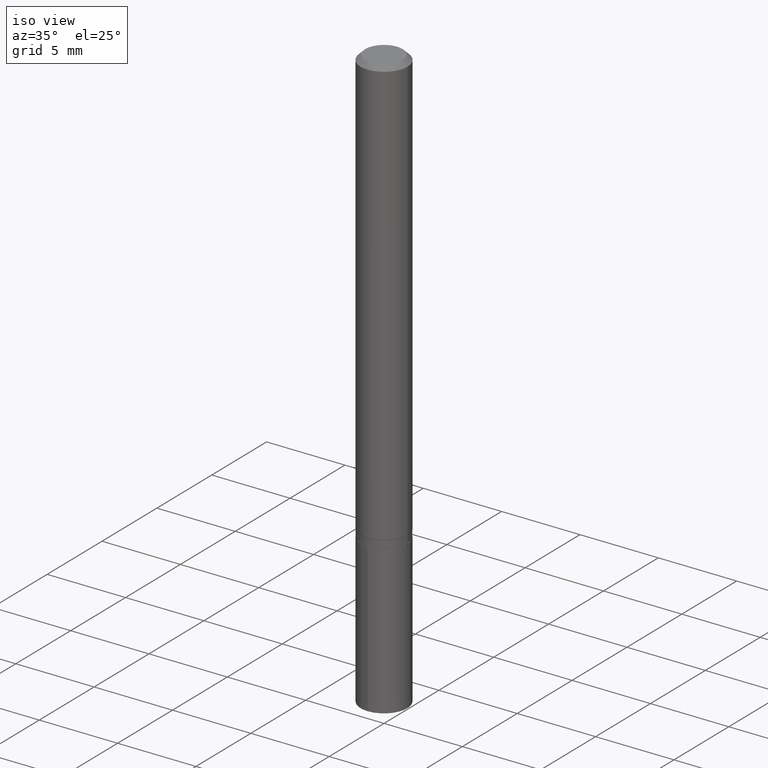
[diagram: clean part render]
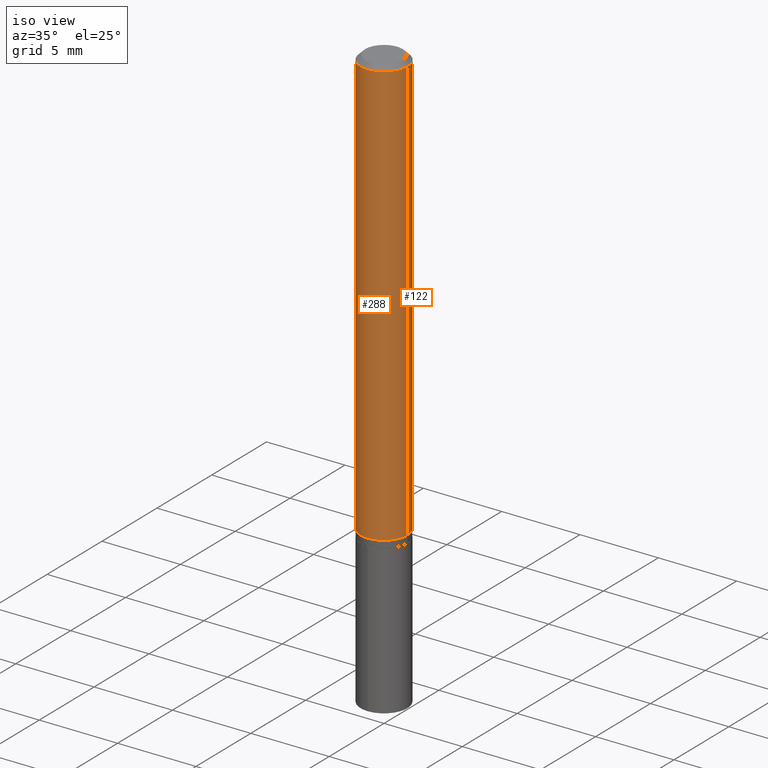
[diagram: same view with one multi-face feature highlighted, each face labeled with its STEP entity id]
A machine part, iso view. The highlighted faces form ONE feature: a constant-radius fillet chain: 2 tangent blend faces with common blend radius 1.4999 mm. The faces share edges in the B-rep.
Their STEP definitions:
[1] entity #288 (Cylinder):
#2 = AXIS2_PLACEMENT_3D ( 'NONE', #42, #465, #420 ) ;
#26 = CARTESIAN_POINT ( 'NONE',  ( 0.000000000000000000, 0.000000000000000000, 0.000000000000000000 ) ) ;
#27 = EDGE_CURVE ( 'NONE', #421, #469, #29, .T. ) ;
#29 = CIRCLE ( 'NONE', #408, 0.05904999999999999832 ) ;
#42 = CARTESIAN_POINT ( 'NONE',  ( 2.629874711847569315E-29, -3.754764099500085778E-15, -1.075407179676971969 ) ) ;
#106 = ORIENTED_EDGE ( 'NONE', *, *, #367, .T. ) ;
#112 = EDGE_CURVE ( 'NONE', #345, #338, #426, .T. ) ;
#126 = LINE ( 'NONE', #169, #181 ) ;
#136 = CARTESIAN_POINT ( 'NONE',  ( 2.888098660104663766E-31, -4.123439461173779647E-17, -0.01181000000000007044 ) ) ;
#140 = CARTESIAN_POINT ( 'NONE',  ( -0.05905000000000013016, -3.335188614033745102E-15, -1.075407179676971969 ) ) ;
#169 = CARTESIAN_POINT ( 'NONE',  ( -0.05905000000000006771, 4.195754854663396409E-16, -2.904631170795525045E-30 ) ) ;
#177 = LINE ( 'NONE', #350, #349 ) ;
#181 = VECTOR ( 'NONE', #404, 39.37007874015748143 ) ;
#218 = EDGE_CURVE ( 'NONE', #345, #421, #126, .T. ) ;
#228 = CARTESIAN_POINT ( 'NONE',  ( -0.05904999999999999832, -1.478423761589571274E-15, -0.01181000000000007044 ) ) ;
#235 = FACE_OUTER_BOUND ( 'NONE', #482, .T. ) ;
#250 = ORIENTED_EDGE ( 'NONE', *, *, #27, .F. ) ;
#288 = ADVANCED_FACE ( 'NONE', ( #235 ), #363, .T. ) ;
#289 = DIRECTION ( 'NONE',  ( -2.445468806185136597E-29, 3.491481338843145583E-15, 1.000000000000000000 ) ) ;
#338 = VERTEX_POINT ( 'NONE', #447 ) ;
#345 = VERTEX_POINT ( 'NONE', #140 ) ;
#349 = VECTOR ( 'NONE', #384, 39.37007874015748143 ) ;
#350 = CARTESIAN_POINT ( 'NONE',  ( 0.05905000000000006771, -4.123439461173745257E-16, 2.879382386107503723E-30 ) ) ;
#363 = CYLINDRICAL_SURFACE ( 'NONE', #376, 0.05905000000000006771 ) ;
#367 = EDGE_CURVE ( 'NONE', #338, #469, #177, .T. ) ;
#376 = AXIS2_PLACEMENT_3D ( 'NONE', #26, #396, #434 ) ;
#384 = DIRECTION ( 'NONE',  ( -2.445468806185136877E-29, 3.491481338843145188E-15, 1.000000000000000000 ) ) ;
#388 = ORIENTED_EDGE ( 'NONE', *, *, #112, .T. ) ;
#396 = DIRECTION ( 'NONE',  ( -2.445468806185136597E-29, 3.491481338843145583E-15, 1.000000000000000000 ) ) ;
#404 = DIRECTION ( 'NONE',  ( -2.445468806185136877E-29, 3.491481338843145188E-15, 1.000000000000000000 ) ) ;
#405 = CARTESIAN_POINT ( 'NONE',  ( 0.05904999999999999832, -4.535783407291118600E-16, -0.01181000000000007044 ) ) ;
#408 = AXIS2_PLACEMENT_3D ( 'NONE', #136, #289, #446 ) ;
#420 = DIRECTION ( 'NONE',  ( 1.000000000000000000, -6.982962677686265133E-15, 0.000000000000000000 ) ) ;
#421 = VERTEX_POINT ( 'NONE', #228 ) ;
#426 = CIRCLE ( 'NONE', #2, 0.05905000000000013016 ) ;
#434 = DIRECTION ( 'NONE',  ( 1.000000000000000000, -6.982962677686266711E-15, 4.876176775795936353E-29 ) ) ;
#446 = DIRECTION ( 'NONE',  ( 1.000000000000000000, -6.982962677686266711E-15, 0.000000000000000000 ) ) ;
#447 = CARTESIAN_POINT ( 'NONE',  ( 0.05905000000000013016, -4.167108045617460698E-15, -1.075407179676971969 ) ) ;
#465 = DIRECTION ( 'NONE',  ( -2.445468806185136597E-29, 3.491481338843145583E-15, 1.000000000000000000 ) ) ;
#469 = VERTEX_POINT ( 'NONE', #405 ) ;
#482 = EDGE_LOOP ( 'NONE', ( #489, #388, #106, #250 ) ) ;
#489 = ORIENTED_EDGE ( 'NONE', *, *, #218, .F. ) ;
[2] entity #122 (Cylinder):
#38 = EDGE_CURVE ( 'NONE', #338, #345, #73, .T. ) ;
#47 = DIRECTION ( 'NONE',  ( 1.000000000000000000, -6.982962677686266711E-15, 4.876176775795936353E-29 ) ) ;
#73 = CIRCLE ( 'NONE', #357, 0.05905000000000013016 ) ;
#74 = CYLINDRICAL_SURFACE ( 'NONE', #436, 0.05905000000000006771 ) ;
#89 = DIRECTION ( 'NONE',  ( 1.000000000000000000, -6.982962677686266711E-15, 0.000000000000000000 ) ) ;
#113 = FACE_OUTER_BOUND ( 'NONE', #339, .T. ) ;
#122 = ADVANCED_FACE ( 'NONE', ( #113 ), #74, .T. ) ;
#126 = LINE ( 'NONE', #169, #181 ) ;
#140 = CARTESIAN_POINT ( 'NONE',  ( -0.05905000000000013016, -3.335188614033745102E-15, -1.075407179676971969 ) ) ;
#145 = AXIS2_PLACEMENT_3D ( 'NONE', #392, #195, #89 ) ;
#169 = CARTESIAN_POINT ( 'NONE',  ( -0.05905000000000006771, 4.195754854663396409E-16, -2.904631170795525045E-30 ) ) ;
#177 = LINE ( 'NONE', #350, #349 ) ;
#181 = VECTOR ( 'NONE', #404, 39.37007874015748143 ) ;
#183 = DIRECTION ( 'NONE',  ( -2.445468806185136597E-29, 3.491481338843145583E-15, 1.000000000000000000 ) ) ;
#195 = DIRECTION ( 'NONE',  ( -2.445468806185136597E-29, 3.491481338843145583E-15, 1.000000000000000000 ) ) ;
#214 = ORIENTED_EDGE ( 'NONE', *, *, #218, .T. ) ;
#217 = CARTESIAN_POINT ( 'NONE',  ( 2.629874711847569315E-29, -3.754764099500085778E-15, -1.075407179676971969 ) ) ;
#218 = EDGE_CURVE ( 'NONE', #345, #421, #126, .T. ) ;
#223 = CARTESIAN_POINT ( 'NONE',  ( 0.000000000000000000, 0.000000000000000000, 0.000000000000000000 ) ) ;
#228 = CARTESIAN_POINT ( 'NONE',  ( -0.05904999999999999832, -1.478423761589571274E-15, -0.01181000000000007044 ) ) ;
#233 = EDGE_CURVE ( 'NONE', #469, #421, #365, .T. ) ;
#269 = ORIENTED_EDGE ( 'NONE', *, *, #38, .T. ) ;
#314 = DIRECTION ( 'NONE',  ( -2.445468806185136597E-29, 3.491481338843145583E-15, 1.000000000000000000 ) ) ;
#338 = VERTEX_POINT ( 'NONE', #447 ) ;
#339 = EDGE_LOOP ( 'NONE', ( #269, #214, #464, #477 ) ) ;
#345 = VERTEX_POINT ( 'NONE', #140 ) ;
#349 = VECTOR ( 'NONE', #384, 39.37007874015748143 ) ;
#350 = CARTESIAN_POINT ( 'NONE',  ( 0.05905000000000006771, -4.123439461173745257E-16, 2.879382386107503723E-30 ) ) ;
#357 = AXIS2_PLACEMENT_3D ( 'NONE', #217, #314, #383 ) ;
#365 = CIRCLE ( 'NONE', #145, 0.05904999999999999832 ) ;
#367 = EDGE_CURVE ( 'NONE', #338, #469, #177, .T. ) ;
#383 = DIRECTION ( 'NONE',  ( 1.000000000000000000, -6.982962677686265133E-15, 0.000000000000000000 ) ) ;
#384 = DIRECTION ( 'NONE',  ( -2.445468806185136877E-29, 3.491481338843145188E-15, 1.000000000000000000 ) ) ;
#392 = CARTESIAN_POINT ( 'NONE',  ( 2.888098660104663766E-31, -4.123439461173779647E-17, -0.01181000000000007044 ) ) ;
#404 = DIRECTION ( 'NONE',  ( -2.445468806185136877E-29, 3.491481338843145188E-15, 1.000000000000000000 ) ) ;
#405 = CARTESIAN_POINT ( 'NONE',  ( 0.05904999999999999832, -4.535783407291118600E-16, -0.01181000000000007044 ) ) ;
#421 = VERTEX_POINT ( 'NONE', #228 ) ;
#436 = AXIS2_PLACEMENT_3D ( 'NONE', #223, #183, #47 ) ;
#447 = CARTESIAN_POINT ( 'NONE',  ( 0.05905000000000013016, -4.167108045617460698E-15, -1.075407179676971969 ) ) ;
#464 = ORIENTED_EDGE ( 'NONE', *, *, #233, .F. ) ;
#469 = VERTEX_POINT ( 'NONE', #405 ) ;
#477 = ORIENTED_EDGE ( 'NONE', *, *, #367, .F. ) ;